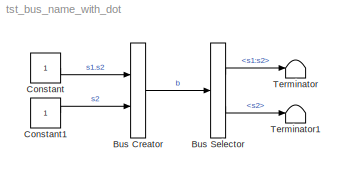
MODEL tst_bus_name_with_dot
KIND model
BLOCK [BusCreator] Bus Creator
  DisplayOption = bar
  Inputs = 2
  Ports = [2, 1]
  SID = 1
BLOCK [BusSelector] Bus Selector
  OutputSignals = s1:s2,s2
  Ports = [1, 2]
  SID = 2
BLOCK [Constant] Constant
  SID = 3
BLOCK [Constant] Constant1
  SID = 5
BLOCK [Terminator] Terminator
  SID = 13
BLOCK [Terminator] Terminator1
  SID = 14
LINE Bus Creator:1 -> Bus Selector:1
LINE Bus Selector:1 -> Terminator:1
LINE Bus Selector:2 -> Terminator1:1
LINE Constant1:1 -> Bus Creator:2
LINE Constant:1 -> Bus Creator:1
